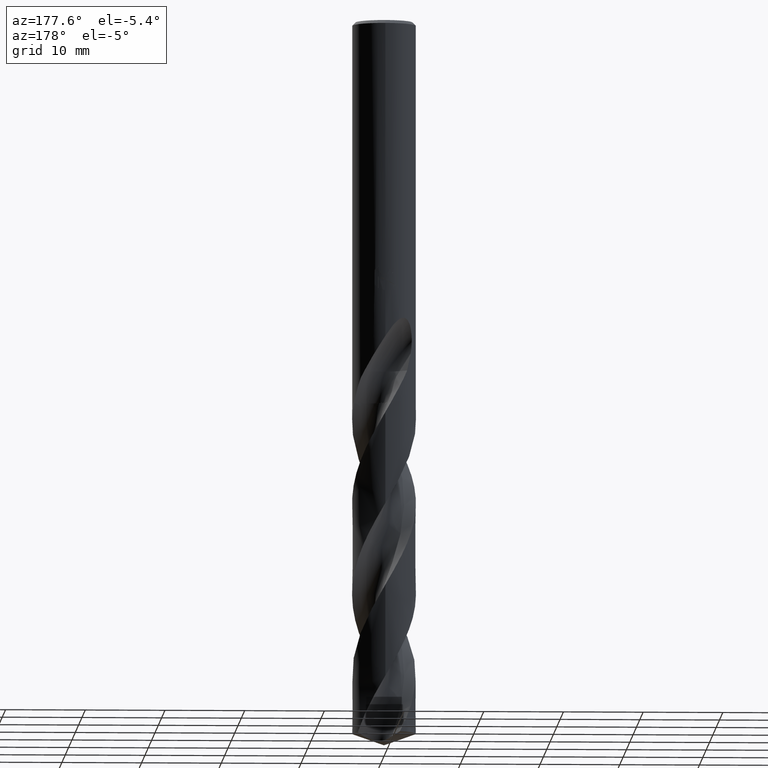
[diagram: clean part render]
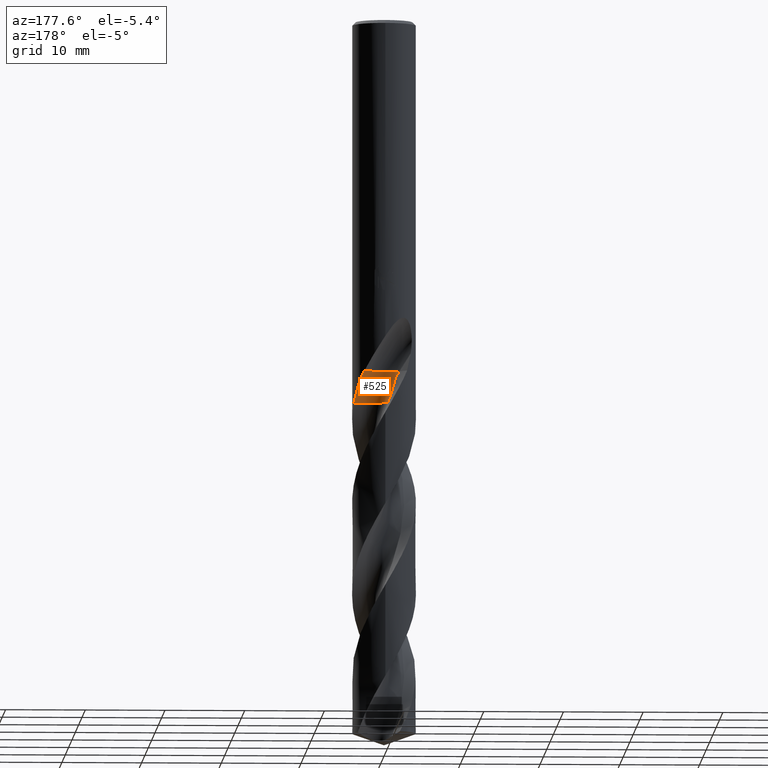
[diagram: same view with one face highlighted and labeled with its STEP entity id]
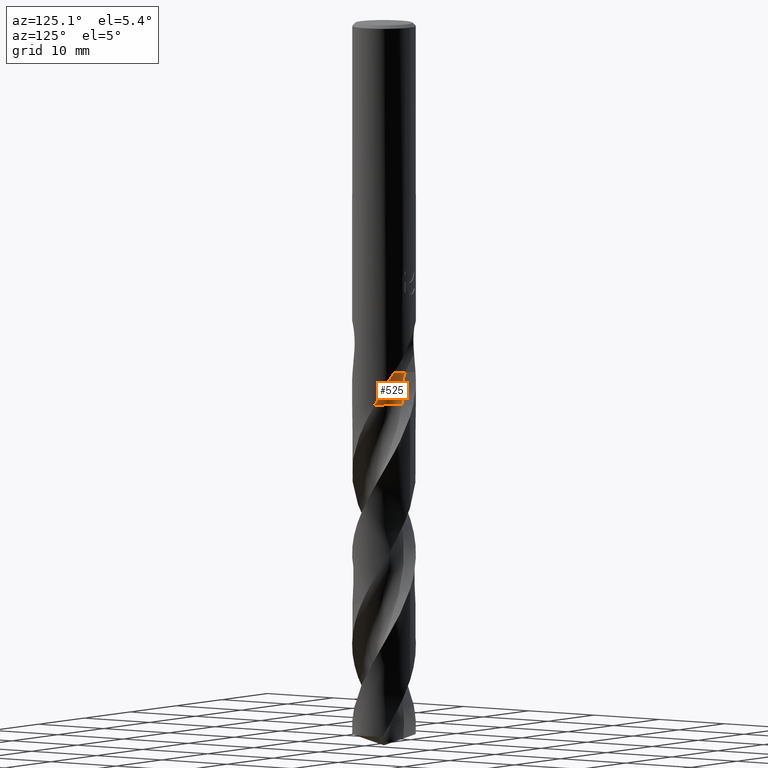
[diagram: same view with one face highlighted and labeled with its STEP entity id]
A machine part, auxiliary view. The second image highlights one B-rep face of the part: STEP entity #525.
A second angle (auxiliary view) of the same face is appended — the face is thin or edge-on in the first view.
In plain terms, the highlighted face is a freeform B-spline surface patch.
Its self-contained STEP definition (entity closure, byte-faithful):
#425=EDGE_CURVE('',#627,#487,#940,.T.);
#427=EDGE_CURVE('',#697,#627,#942,.T.);
#465=EDGE_CURVE('',#723,#639,#983,.T.);
#487=VERTEX_POINT('',#1007);
#525=ADVANCED_FACE('',(#1048),#1049,.F.);
#579=EDGE_CURVE('',#487,#723,#1106,.T.);
#609=EDGE_CURVE('',#639,#697,#1139,.T.);
#627=VERTEX_POINT('',#1158);
#639=VERTEX_POINT('',#1171);
#697=VERTEX_POINT('',#1233);
#723=VERTEX_POINT('',#1262);
#940=B_SPLINE_CURVE_WITH_KNOTS('',3,(#3825,#3826,#3827,#3828,#3829,#3830,#3831,#3832,#3833,#3834,#3835,#3836),.UNSPECIFIED.,.F.,.F.,(4,2,2,2,2,4),(0.0,0.673281679182227,1.64337025448362,2.38350249224297,3.38728835496563,5.3568489773321),.UNSPECIFIED.);
#942=B_SPLINE_CURVE_WITH_KNOTS('',3,(#3839,#3840,#3841,#3842,#3843,#3844,#3845,#3846,#3847,#3848,#3849,#3850,#3851,#3852),.UNSPECIFIED.,.F.,.F.,(4,2,2,2,2,2,4),(0.0,1.04105867677146,2.08135611188664,3.12148193005078,4.16210319264938,4.85750600932007,5.55293171234719),.UNSPECIFIED.);
#983=CIRCLE('',#4351,2.66666667);
#1007=CARTESIAN_POINT('',(2.54885976013372,3.08274454393663,-44.053));
#1048=FACE_OUTER_BOUND('',#4811,.T.);
#1049=B_SPLINE_SURFACE_WITH_KNOTS('',3,3,((#4812,#4813,#4814,#4815,#4816,#4817,#4818,#4819,#4820,#4821,#4822,#4823,#4824,#4825,#4826,#4827,#4828,#4829,#4830,#4831,#4832,#4833,#4834,#4835,#4836,#4837,#4838,#4839,#4840,#4841,#4842,#4843,#4844,#4845,#4846,#4847,#4848,#4849,#4850,#4851,#4852,#4853,#4854,#4855,#4856,#4857,#4858,#4859,#4860,#4861,#4862,#4863,#4864,#4865,#4866,#4867),(#4868,#4869,#4870,#4871,#4872,#4873,#4874,#4875,#4876,#4877,#4878,#4879,#4880,#4881,#4882,#4883,#4884,#4885,#4886,#4887,#4888,#4889,#4890,#4891,#4892,#4893,#4894,#4895,#4896,#4897,#4898,#4899,#4900,#4901,#4902,#4903,#4904,#4905,#4906,#4907,#4908,#4909,#4910,#4911,#4912,#4913,#4914,#4915,#4916,#4917,#4918,#4919,#4920,#4921,#4922,#4923),(#4924,#4925,#4926,#4927,#4928,#4929,#4930,#4931,#4932,#4933,#4934,#4935,#4936,#4937,#4938,#4939,#4940,#4941,#4942,#4943,#4944,#4945,#4946,#4947,#4948,#4949,#4950,#4951,#4952,#4953,#4954,#4955,#4956,#4957,#4958,#4959,#4960,#4961,#4962,#4963,#4964,#4965,#4966,#4967,#4968,#4969,#4970,#4971,#4972,#4973,#4974,#4975,#4976,#4977,#4978,#4979),(#4980,#4981,#4982,#4983,#4984,#4985,#4986,#4987,#4988,#4989,#4990,#4991,#4992,#4993,#4994,#4995,#4996,#4997,#4998,#4999,#5000,#5001,#5002,#5003,#5004,#5005,#5006,#5007,#5008,#5009,#5010,#5011,#5012,#5013,#5014,#5015,#5016,#5017,#5018,#5019,#5020,#5021,#5022,#5023,#5024,#5025,#5026,#5027,#5028,#5029,#5030,#5031,#5032,#5033,#5034,#5035),(#5036,#5037,#5038,#5039,#5040,#5041,#5042,#5043,#5044,#5045,#5046,#5047,#5048,#5049,#5050,#5051,#5052,#5053,#5054,#5055,#5056,#5057,#5058,#5059,#5060,#5061,#5062,#5063,#5064,#5065,#5066,#5067,#5068,#5069,#5070,#5071,#5072,#5073,#5074,#5075,#5076,#5077,#5078,#5079,#5080,#5081,#5082,#5083,#5084,#5085,#5086,#5087,#5088,#5089,#5090,#5091),(#5092,#5093,#5094,#5095,#5096,#5097,#5098,#5099,#5100,#5101,#5102,#5103,#5104,#5105,#5106,#5107,#5108,#5109,#5110,#5111,#5112,#5113,#5114,#5115,#5116,#5117,#5118,#5119,#5120,#5121,#5122,#5123,#5124,#5125,#5126,#5127,#5128,#5129,#5130,#5131,#5132,#5133,#5134,#5135,#5136,#5137,#5138,#5139,#5140,#5141,#5142,#5143,#5144,#5145,#5146,#5147),(#5148,#5149,#5150,#5151,#5152,#5153,#5154,#5155,#5156,#5157,#5158,#5159,#5160,#5161,#5162,#5163,#5164,#5165,#5166,#5167,#5168,#5169,#5170,#5171,#5172,#5173,#5174,#5175,#5176,#5177,#5178,#5179,#5180,#5181,#5182,#5183,#5184,#5185,#5186,#5187,#5188,#5189,#5190,#5191,#5192,#5193,#5194,#5195,#5196,#5197,#5198,#5199,#5200,#5201,#5202,#5203),(#5204,#5205,#5206,#5207,#5208,#5209,#5210,#5211,#5212,#5213,#5214,#5215,#5216,#5217,#5218,#5219,#5220,#5221,#5222,#5223,#5224,#5225,#5226,#5227,#5228,#5229,#5230,#5231,#5232,#5233,#5234,#5235,#5236,#5237,#5238,#5239,#5240,#5241,#5242,#5243,#5244,#5245,#5246,#5247,#5248,#5249,#5250,#5251,#5252,#5253,#5254,#5255,#5256,#5257,#5258,#5259),(#5260,#5261,#5262,#5263,#5264,#5265,#5266,#5267,#5268,#5269,#5270,#5271,#5272,#5273,#5274,#5275,#5276,#5277,#5278,#5279,#5280,#5281,#5282,#5283,#5284,#5285,#5286,#5287,#5288,#5289,#5290,#5291,#5292,#5293,#5294,#5295,#5296,#5297,#5298,#5299,#5300,#5301,#5302,#5303,#5304,#5305,#5306,#5307,#5308,#5309,#5310,#5311,#5312,#5313,#5314,#5315),(#5316,#5317,#5318,#5319,#5320,#5321,#5322,#5323,#5324,#5325,#5326,#5327,#5328,#5329,#5330,#5331,#5332,#5333,#5334,#5335,#5336,#5337,#5338,#5339,#5340,#5341,#5342,#5343,#5344,#5345,#5346,#5347,#5348,#5349,#5350,#5351,#5352,#5353,#5354,#5355,#5356,#5357,#5358,#5359,#5360,#5361,#5362,#5363,#5364,#5365,#5366,#5367,#5368,#5369,#5370,#5371),(#5372,#5373,#5374,#5375,#5376,#5377,#5378,#5379,#5380,#5381,#5382,#5383,#5384,#5385,#5386,#5387,#5388,#5389,#5390,#5391,#5392,#5393,#5394,#5395,#5396,#5397,#5398,#5399,#5400,#5401,#5402,#5403,#5404,#5405,#5406,#5407,#5408,#5409,#5410,#5411,#5412,#5413,#5414,#5415,#5416,#5417,#5418,#5419,#5420,#5421,#5422,#5423,#5424,#5425,#5426,#5427)),.UNSPECIFIED.,.F.,.F.,.F.,(4,1,1,1,1,1,1,1,4),(4,1,2,1,2,2,2,2,2,1,2,1,2,1,2,1,2,1,2,1,2,1,2,1,2,1,2,1,2,1,2,1,2,2,4),(4.27095186761561E-018,0.39270124676232,0.785402493524641,1.17810374028696,1.57080498704928,1.9635062338116,2.35620748057392,2.74890872733624,3.14160997409856),(0.0,0.943118589325225,1.88623717865045,2.82935576797567,3.7724743573009,5.65871153595135,7.5449487146018,9.43118589325225,11.3174230719027,13.2036602505531,15.0898974292036,16.976134607854,18.8623717865045,20.7486089651549,22.6348461438054,24.5210833224558,26.4073205011063,28.2935576797567,30.1797948584072,32.0660320370576,33.9522692157081,35.8385063943585,37.724743573009,39.6109807516594,41.4972179303099,43.3834551089603,45.2696922876108,47.1559294662612,49.0421666449117,50.9284038235621,52.8146410022126,54.700878180863,56.5871153595135,58.4733525381639,60.3595897168144),.UNSPECIFIED.);
#1106=CIRCLE('',#5772,2.66666667);
#1139=B_SPLINE_CURVE_WITH_KNOTS('',3,(#6514,#6515,#6516,#6517,#6518,#6519,#6520,#6521,#6522,#6523,#6524,#6525,#6526,#6527,#6528,#6529,#6530,#6531,#6532,#6533,#6534,#6535,#6536,#6537,#6538,#6539,#6540,#6541,#6542,#6543,#6544,#6545,#6546,#6547,#6548,#6549,#6550,#6551,#6552,#6553,#6554,#6555,#6556,#6557,#6558,#6559,#6560,#6561,#6562,#6563,#6564,#6565,#6566,#6567,#6568,#6569),.UNSPECIFIED.,.F.,.F.,(4,1,2,1,2,2,2,2,2,1,2,1,2,1,2,1,2,1,2,1,2,1,2,1,2,1,2,1,2,1,2,1,2,2,4),(0.0,0.943118589325225,1.88623717865045,2.82935576797567,3.7724743573009,5.65871153595135,7.5449487146018,9.43118589325225,11.3174230719027,13.2036602505531,15.0898974292036,16.976134607854,18.8623717865045,20.7486089651549,22.6348461438054,24.5210833224558,26.4073205011063,28.2935576797567,30.1797948584072,32.0660320370576,33.9522692157081,35.8385063943585,37.724743573009,39.6109807516594,41.4972179303099,43.3834551089603,45.2696922876108,47.1559294662612,49.0421666449117,50.9284038235621,52.8146410022126,54.700878180863,56.5871153595135,58.4733525381639,60.3595897168144),.UNSPECIFIED.);
#1158=CARTESIAN_POINT('',(3.8397622781994,1.12081472461642,-48.0));
#1171=CARTESIAN_POINT('',(-1.88561808545044,1.98104858454956,-44.053));
#1233=CARTESIAN_POINT('',(-0.391247382162112,2.4799416168891,-48.0000000000004));
#1262=CARTESIAN_POINT('',(-0.458791990393921,1.23974987486383,-44.053));
#3825=CARTESIAN_POINT('',(3.83976227819939,1.12081472461642,-48.0));
#3826=CARTESIAN_POINT('',(3.80832560203784,1.22851259887338,-47.805627977272));
#3827=CARTESIAN_POINT('',(3.77216141738727,1.3355699424685,-47.6116524157746));
#3828=CARTESIAN_POINT('',(3.67205241181794,1.59465136283516,-47.1394654932676));
#3829=CARTESIAN_POINT('',(3.60630844881775,1.73790509062416,-46.8798371483716));
#3830=CARTESIAN_POINT('',(3.47330951293927,1.98774355459478,-46.3937512436308));
#3831=CARTESIAN_POINT('',(3.41232867950816,2.09032213826649,-46.1833227712735));
#3832=CARTESIAN_POINT('',(3.26298928480476,2.31896745944481,-45.6789622752263));
#3833=CARTESIAN_POINT('',(3.19371862869683,2.4113766255632,-45.4382280753419));
#3834=CARTESIAN_POINT('',(2.96971512491096,2.69015032842839,-44.8007407991685));
#3835=CARTESIAN_POINT('',(2.78667457982286,2.88611565833489,-44.4202380786655));
#3836=CARTESIAN_POINT('',(2.54885976013373,3.08274454393663,-44.053));
#3839=CARTESIAN_POINT('',(-0.391247382162428,2.47994161688906,-48.0));
#3840=CARTESIAN_POINT('',(-0.297580253405777,2.14580235959329,-48.0));
#3841=CARTESIAN_POINT('',(-0.139550438106173,1.8331601576751,-48.0));
#3842=CARTESIAN_POINT('',(0.287382324708038,1.2863000585679,-48.0));
#3843=CARTESIAN_POINT('',(0.552107450142705,1.05727398114392,-48.0));
#3844=CARTESIAN_POINT('',(1.15443793024002,0.713630284446721,-48.0));
#3845=CARTESIAN_POINT('',(1.48624524002398,0.6022945604174,-48.0));
#3846=CARTESIAN_POINT('',(2.17405040373108,0.5130041206521,-48.0));
#3847=CARTESIAN_POINT('',(2.52346169552058,0.535968436819653,-48.0));
#3848=CARTESIAN_POINT('',(3.08266122347612,0.68484108259005,-48.0));
#3849=CARTESIAN_POINT('',(3.29793082225787,0.773436439027168,-48.0));
#3850=CARTESIAN_POINT('',(3.7001265866047,1.00403498087829,-48.0));
#3851=CARTESIAN_POINT('',(3.88534561716917,1.14506156256095,-48.0));
#3852=CARTESIAN_POINT('',(4.05,1.30823400549445,-48.0));
#4351=AXIS2_PLACEMENT_3D('',#9005,#9006,#9007);
#4811=EDGE_LOOP('',(#9060,#9061,#9062,#9063,#9064));
#4812=CARTESIAN_POINT('',(1.88561808545044,5.75228475545044,-44.053));
#4813=CARTESIAN_POINT('',(2.08347829626683,5.73801622095054,-44.2971564876559));
#4814=CARTESIAN_POINT('',(2.48357630315693,5.66801053084746,-44.7886155322624));
#4815=CARTESIAN_POINT('',(2.87832376785535,5.48695818626104,-45.2812509691191));
#4816=CARTESIAN_POINT('',(3.25509506895458,5.23856327614468,-45.7679243680009));
#4817=CARTESIAN_POINT('',(3.61665090027328,4.97835442021255,-46.2534796726459));
#4818=CARTESIAN_POINT('',(3.95339972773346,4.70190689295454,-46.7416229556044));
#4819=CARTESIAN_POINT('',(4.44156745450731,4.27853447781238,-47.4784941910345));
#4820=CARTESIAN_POINT('',(4.73627101999496,3.95822973755883,-47.96926509186));
#4821=CARTESIAN_POINT('',(5.24163281531017,3.24736411491388,-48.9452357999242));
#4822=CARTESIAN_POINT('',(5.45837337715525,2.86761713468972,-49.4336829182974));
#4823=CARTESIAN_POINT('',(5.80793205760429,2.07164998715827,-50.4128735604921));
#4824=CARTESIAN_POINT('',(5.94106721108121,1.65596301843785,-50.902179767232));
#4825=CARTESIAN_POINT('',(6.11420091059893,0.803644836234833,-51.8799425126306));
#4826=CARTESIAN_POINT('',(6.15648935171786,0.368681367858238,-52.3690458817265));
#4827=CARTESIAN_POINT('',(6.14401970502768,-0.50193266271098,-53.3473837691063));
#4828=CARTESIAN_POINT('',(6.04360528199187,-1.36899136706167,-54.3252989085469));
#4829=CARTESIAN_POINT('',(5.76455547610883,-2.19680873843578,-55.304020817578));
#4830=CARTESIAN_POINT('',(5.3941426231465,-2.98520035111992,-56.2821196103673));
#4831=CARTESIAN_POINT('',(4.94514211116869,-3.73402962894458,-57.2597600512782));
#4832=CARTESIAN_POINT('',(4.35005656194376,-4.37374848800971,-58.2384109514841));
#4833=CARTESIAN_POINT('',(3.68822348899044,-4.94006716869988,-59.2166407895469));
#4834=CARTESIAN_POINT('',(2.9710005647799,-5.43794852404356,-60.1943925221067));
#4835=CARTESIAN_POINT('',(2.16545375097933,-5.77615916293302,-61.1730588970311));
#4836=CARTESIAN_POINT('',(1.32923899690343,-6.01999909488507,-62.1512423185889));
#4837=CARTESIAN_POINT('',(0.470691215204489,-6.1787016191131,-63.1289595608402));
#4838=CARTESIAN_POINT('',(-0.402681476582713,-6.15556287494775,-64.1076239481183));
#4839=CARTESIAN_POINT('',(-1.26517662105912,-6.03378115870362,-65.0858216301821));
#4840=CARTESIAN_POINT('',(-2.11299242810955,-5.82520612493317,-66.063548222799));
#4841=CARTESIAN_POINT('',(-2.89949975832343,-5.44479624558776,-67.0422126738579));
#4842=CARTESIAN_POINT('',(-3.63551412919657,-4.97896269259696,-68.0204072296049));
#4843=CARTESIAN_POINT('',(-4.32244505763026,-4.4400615606234,-68.9981321487537));
#4844=CARTESIAN_POINT('',(-4.88280401434949,-3.76976157455679,-69.9767964090954));
#4845=CARTESIAN_POINT('',(-5.36199529229575,-3.04237300272744,-70.9549906904034));
#4846=CARTESIAN_POINT('',(-5.76638881094223,-2.26858098301804,-71.9327153486768));
#4847=CARTESIAN_POINT('',(-6.00136081754075,-1.42709971134656,-72.911380342025));
#4848=CARTESIAN_POINT('',(-6.13886656513858,-0.566978772647396,-73.8895762974419));
#4849=CARTESIAN_POINT('',(-6.18910518031083,0.304665212202986,-74.8673014210747));
#4850=CARTESIAN_POINT('',(-6.05707341647413,1.16830541962717,-75.8459614016409));
#4851=CARTESIAN_POINT('',(-5.82853757749191,2.00883877851352,-76.8241484551032));
#4852=CARTESIAN_POINT('',(-5.51572450361433,2.82397509227054,-77.8018715258961));
#4853=CARTESIAN_POINT('',(-5.04006496641513,3.5568189608194,-78.7805500407334));
#4854=CARTESIAN_POINT('',(-4.48594272198591,4.22888022554178,-79.7587676525697));
#4855=CARTESIAN_POINT('',(-3.86546208441631,4.84310362932056,-80.7364955174297));
#4856=CARTESIAN_POINT('',(-3.13046394947556,5.31538864865114,-81.7151129603291));
#4857=CARTESIAN_POINT('',(-2.34898167821091,5.70008587160547,-82.6932346413857));
#4858=CARTESIAN_POINT('',(-1.53071868611604,6.0047756310503,-83.6709512564821));
#4859=CARTESIAN_POINT('',(-0.666317102176655,6.13257113034508,-84.6497485461618));
#4860=CARTESIAN_POINT('',(0.204395202806848,6.16101906002486,-85.6281425940594));
#4861=CARTESIAN_POINT('',(1.07533809830945,6.10167168488739,-86.6059079422162));
#4862=CARTESIAN_POINT('',(1.91554304645226,5.86397392524449,-87.584352686936));
#4863=CARTESIAN_POINT('',(2.72113491806778,5.53442570637007,-88.5622403259292));
#4864=CARTESIAN_POINT('',(3.10637226781212,5.3279408792601,-89.0512409386577));
#4865=CARTESIAN_POINT('',(3.82329562785807,4.83436502819817,-90.0292218071077));
#4866=CARTESIAN_POINT('',(4.15601495955671,4.55409905019397,-90.5175576446439));
#4867=CARTESIAN_POINT('',(4.45825116858403,4.24525135560922,-91.0064682916048));
#4868=CARTESIAN_POINT('',(2.13243607235617,5.50544636091594,-44.053));
#4869=CARTESIAN_POINT('',(2.3298994708686,5.49078104792074,-44.2971451603825));
#4870=CARTESIAN_POINT('',(2.72398436309882,5.41458744984642,-44.7889440151415));
#4871=CARTESIAN_POINT('',(3.10081488153193,5.21752258760379,-45.2820280054404));
#4872=CARTESIAN_POINT('',(3.4523155650183,4.95011538738026,-45.7683414078272));
#4873=CARTESIAN_POINT('',(3.78938011804517,4.6741412221411,-46.253401364705));
#4874=CARTESIAN_POINT('',(4.10410701804709,4.38684531720718,-46.7414236405063));
#4875=CARTESIAN_POINT('',(4.56117987006919,3.94981924153904,-47.4787524223094));
#4876=CARTESIAN_POINT('',(4.83304388611244,3.62188353563378,-47.9697513863138));
#4877=CARTESIAN_POINT('',(5.28868004278727,2.9005495806324,-48.9454097242412));
#4878=CARTESIAN_POINT('',(5.48077863301153,2.51840220179068,-49.4337676991352));
#4879=CARTESIAN_POINT('',(5.78115856378917,1.72274310419697,-50.4130976842006));
#4880=CARTESIAN_POINT('',(5.88986742786428,1.30978415746213,-50.902432606474));
#4881=CARTESIAN_POINT('',(6.01465649047952,0.468157185301798,-51.8801351030036));
#4882=CARTESIAN_POINT('',(6.033532385516,0.0410352251192048,-52.369239397922));
#4883=CARTESIAN_POINT('',(5.97572946349401,-0.808769100498875,-53.3475973146516));
#4884=CARTESIAN_POINT('',(5.83315475328328,-1.65066182408856,-54.3254736371946));
#4885=CARTESIAN_POINT('',(5.51791672461411,-2.44509482180372,-55.3042687945437));
#4886=CARTESIAN_POINT('',(5.11455950940161,-3.19569914358866,-56.2823542831663));
#4887=CARTESIAN_POINT('',(4.63740346669448,-3.90411548858673,-57.2599177072296));
#4888=CARTESIAN_POINT('',(4.02308892186748,-4.49851846580713,-58.2386320606394));
#4889=CARTESIAN_POINT('',(3.34679480456725,-5.01688935387995,-59.2168668110099));
#4890=CARTESIAN_POINT('',(2.62053859174626,-5.46637821431278,-60.1945570229163));
#4891=CARTESIAN_POINT('',(1.81610672541941,-5.75536886263318,-61.1732889613512));
#4892=CARTESIAN_POINT('',(0.986438399846955,-5.94954957443835,-62.1514708624328));
#4893=CARTESIAN_POINT('',(0.139567732597573,-6.06042655437068,-63.1291217702386));
#4894=CARTESIAN_POINT('',(-0.712539690563504,-5.99288691632183,-64.107851452982));
#4895=CARTESIAN_POINT('',(-1.54863759939642,-5.82853677911455,-65.0860496028846));
#4896=CARTESIAN_POINT('',(-2.36613373771299,-5.58117481161453,-66.0637111389466));
#4897=CARTESIAN_POINT('',(-3.11499151598573,-5.16904481405449,-67.0424409586324));
#4898=CARTESIAN_POINT('',(-3.80943396259756,-4.67527331520269,-68.0206354558996));
#4899=CARTESIAN_POINT('',(-4.45277363309271,-4.11349424044055,-68.9982951334444));
#4900=CARTESIAN_POINT('',(-4.96576722549039,-3.42977237502549,-69.9770247444696));
#4901=CARTESIAN_POINT('',(-5.39557364152197,-2.6940228215967,-70.955218908818));
#4902=CARTESIAN_POINT('',(-5.75082363941171,-1.91731261551328,-71.9328783782979));
#4903=CARTESIAN_POINT('',(-5.9371028034998,-1.08308451722629,-72.9116087154391));
#4904=CARTESIAN_POINT('',(-6.02615720308267,-0.235660282042138,-73.8898048462956));
#4905=CARTESIAN_POINT('',(-6.03040312610781,0.618425372051994,-74.8674646424876));
#4906=CARTESIAN_POINT('',(-5.85697380938868,1.45542160480376,-75.8461893222424));
#4907=CARTESIAN_POINT('',(-5.58950027114127,2.26444886957428,-76.8243755569868));
#4908=CARTESIAN_POINT('',(-5.24199115847301,3.04465999828041,-77.8020334665409));
#4909=CARTESIAN_POINT('',(-4.73956072703115,3.73618686156062,-78.7807790530557));
#4910=CARTESIAN_POINT('',(-4.16290952844086,4.36350930597093,-79.7589993549653));
#4911=CARTESIAN_POINT('',(-3.52517408012618,4.93162310316389,-80.7366609894215));
#4912=CARTESIAN_POINT('',(-2.78277642138677,5.35524517720665,-81.7153375867604));
#4913=CARTESIAN_POINT('',(-1.99916524953917,5.68991573647527,-82.6934516654361));
#4914=CARTESIAN_POINT('',(-1.18413868642122,5.94548266814384,-83.6711065917535));
#4915=CARTESIAN_POINT('',(-0.333026595318698,6.02582405930629,-84.6499860288056));
#4916=CARTESIAN_POINT('',(0.518999243715816,6.00771679173756,-85.6283978545787));
#4917=CARTESIAN_POINT('',(1.36675441024159,5.9049465613396,-86.6060850075891));
#4918=CARTESIAN_POINT('',(2.17548125384667,5.62966580199933,-87.584562368642));
#4919=CARTESIAN_POINT('',(2.94518890788208,5.26559901632118,-88.5624298905656));
#4920=CARTESIAN_POINT('',(3.31084176655673,5.0439253422802,-89.0514407199777));
#4921=CARTESIAN_POINT('',(3.98523097483361,4.52412427406355,-90.0294649804789));
#4922=CARTESIAN_POINT('',(4.29608208403759,4.23349181393367,-90.5177443934788));
#4923=CARTESIAN_POINT('',(4.57604996168047,3.91666085912254,-91.0066723504763));
#4924=CARTESIAN_POINT('',(2.52780940903102,4.91372298130983,-44.0529999999998));
#4925=CARTESIAN_POINT('',(2.72432156853769,4.89842207582907,-44.297126529459));
#4926=CARTESIAN_POINT('',(3.10392204967595,4.8122465054407,-44.7894842669751));
#4927=CARTESIAN_POINT('',(3.43855894427061,4.59028773801236,-45.2833059742612));
#4928=CARTESIAN_POINT('',(3.7319682796878,4.2949135345331,-45.7690273094497));
#4929=CARTESIAN_POINT('',(4.01379121941145,3.99715488984904,-46.253272573128));
#4930=CARTESIAN_POINT('',(4.2801695554899,3.69692403865504,-46.7410958263955));
#4931=CARTESIAN_POINT('',(4.66963620385918,3.24496172126949,-47.4791771395497));
#4932=CARTESIAN_POINT('',(4.8927961919539,2.91084951061361,-47.9705511947322));
#4933=CARTESIAN_POINT('',(5.24483912293665,2.18835762849992,-48.9456957629319));
#4934=CARTESIAN_POINT('',(5.38670958833735,1.81120966155784,-49.4339071507061));
#4935=CARTESIAN_POINT('',(5.58887524377648,1.03572310739259,-50.4134662810573));
#4936=CARTESIAN_POINT('',(5.64982661662209,0.637932482239153,-50.9028484429637));
#4937=CARTESIAN_POINT('',(5.6821983110888,-0.16309163534911,-51.8804518546765));
#4938=CARTESIAN_POINT('',(5.65737723800919,-0.565223562532268,-52.3695576920482));
#4939=CARTESIAN_POINT('',(5.51720211945778,-1.35538984836127,-53.3479485059104));
#4940=CARTESIAN_POINT('',(5.30033219350064,-2.13019557445814,-54.3257610058353));
#4941=CARTESIAN_POINT('',(4.92600869131137,-2.84348316957057,-55.3046766664288));
#4942=CARTESIAN_POINT('',(4.47180325870133,-3.50542802410905,-56.2827402146051));
#4943=CARTESIAN_POINT('',(3.95441881522486,-4.12183907847177,-57.2601770257237));
#4944=CARTESIAN_POINT('',(3.31967479326829,-4.61798271738214,-58.2389956931096));
#4945=CARTESIAN_POINT('',(2.63353182555062,-5.03472756140525,-59.217238564302));
#4946=CARTESIAN_POINT('',(1.90845676962033,-5.38385961154768,-60.194827548799));
#4947=CARTESIAN_POINT('',(1.12582731048359,-5.57487436438068,-61.1736673720568));
#4948=CARTESIAN_POINT('',(0.32899676926968,-5.67236083301938,-62.1518467143584));
#4949=CARTESIAN_POINT('',(-0.475506090091183,-5.69225044039248,-63.1293885529942));
#4950=CARTESIAN_POINT('',(-1.26743530750073,-5.54438409923401,-64.1082256530444));
#4951=CARTESIAN_POINT('',(-2.0338219677888,-5.30541230333051,-65.0864245166291));
#4952=CARTESIAN_POINT('',(-2.77526734529458,-4.99254982554224,-66.0639791486466));
#4953=CARTESIAN_POINT('',(-3.43622794133723,-4.53196480201425,-67.0428163111411));
#4954=CARTESIAN_POINT('',(-4.03643415440538,-3.99886081444177,-68.021010916969));
#4955=CARTESIAN_POINT('',(-4.5835119088183,-3.40867018854192,-68.9985632200594));
#4956=CARTESIAN_POINT('',(-4.99645734653568,-2.71694565712237,-69.9774001215335));
#4957=CARTESIAN_POINT('',(-5.32418995570539,-1.98411625343706,-70.9555944155741));
#4958=CARTESIAN_POINT('',(-5.58001315264688,-1.22111350977376,-71.9331464123022));
#4959=CARTESIAN_POINT('',(-5.67181148593173,-0.420752061348153,-72.9119843494595));
#4960=CARTESIAN_POINT('',(-5.66903255992069,0.382016770012066,-73.8901807021492));
#4961=CARTESIAN_POINT('',(-5.58829482521803,1.18270351082061,-74.8677330743617));
#4962=CARTESIAN_POINT('',(-5.34268315625389,1.94996071204297,-75.8465642410423));
#4963=CARTESIAN_POINT('',(-5.00987943565338,2.68050496785326,-76.8247490035234));
#4964=CARTESIAN_POINT('',(-4.60688135522611,3.37708303974024,-77.8022997079202));
#4965=CARTESIAN_POINT('',(-4.06735068694314,3.97534750213503,-78.7811559649788));
#4966=CARTESIAN_POINT('',(-3.46344202906828,4.50425218853546,-79.7593801703153));
#4967=CARTESIAN_POINT('',(-2.80954040623019,4.97330456975827,-80.736933268926));
#4968=CARTESIAN_POINT('',(-2.07169826079389,5.29667873929675,-81.7157070224798));
#4969=CARTESIAN_POINT('',(-1.3037239883543,5.5304704273437,-82.6938086024462));
#4970=CARTESIAN_POINT('',(-0.514703306306317,5.68909941573055,-83.6713620146742));
#4971=CARTESIAN_POINT('',(0.290964651428653,5.67983732486805,-84.6503767158804));
#4972=CARTESIAN_POINT('',(1.08711211512299,5.57607016267473,-85.6288175712533));
#4973=CARTESIAN_POINT('',(1.87123386303998,5.39569346563158,-86.6063763107042));
#4974=CARTESIAN_POINT('',(2.60207237375206,5.05778021679069,-87.584907156778));
#4975=CARTESIAN_POINT('',(3.28629990650511,4.63896069298623,-88.5627417339684));
#4976=CARTESIAN_POINT('',(3.60675196850412,4.39470375813903,-89.0517693550789));
#4977=CARTESIAN_POINT('',(4.18566200369408,3.8393775732866,-90.0298648630923));
#4978=CARTESIAN_POINT('',(4.44866347882017,3.53671273696155,-90.5180514910811));
#4979=CARTESIAN_POINT('',(4.68092941867461,3.21277392204209,-91.0070079615718));
#4980=CARTESIAN_POINT('',(2.73608997046833,3.86666886677179,-44.0529999999996));
#4981=CARTESIAN_POINT('',(2.9309189106877,3.85103313442146,-44.297114901153));
#4982=CARTESIAN_POINT('',(3.2847147667282,3.75933814614107,-44.7898215216971));
#4983=CARTESIAN_POINT('',(3.54658491340322,3.52709809209786,-45.2841037602427));
#4984=CARTESIAN_POINT('',(3.74342806908816,3.2263118926581,-45.7694554872359));
#4985=CARTESIAN_POINT('',(3.93618400304013,2.93007356283689,-46.253192174454));
#4986=CARTESIAN_POINT('',(4.1281292945772,2.63967012480868,-46.740891186705));
#4987=CARTESIAN_POINT('',(4.41532400329942,2.20581681820957,-47.4794422706751));
#4988=CARTESIAN_POINT('',(4.56743809907669,1.89110240236489,-47.9710504771838));
#4989=CARTESIAN_POINT('',(4.77524279465077,1.22647423310671,-48.9458743302924));
#4990=CARTESIAN_POINT('',(4.85037041306046,0.885088738943272,-49.4339941912634));
#4991=CARTESIAN_POINT('',(4.92799774695181,0.193940021404465,-50.4136963942942));
#4992=CARTESIAN_POINT('',(4.93146784542772,-0.155413055932445,-50.903108032707));
#4993=CARTESIAN_POINT('',(4.85906341061759,-0.847111825506429,-51.8806495896773));
#4994=CARTESIAN_POINT('',(4.78802686067405,-1.1895248719105,-52.369756378805));
#4995=CARTESIAN_POINT('',(4.56792475360706,-1.84975086570578,-53.3481677514169));
#4996=CARTESIAN_POINT('',(4.28659811123204,-2.48892908829912,-54.3259403987658));
#4997=CARTESIAN_POINT('',(3.87696776589313,-3.05583646681671,-55.3049312719625));
#4998=CARTESIAN_POINT('',(3.40318530754351,-3.56571566485968,-56.2829811479275));
#4999=CARTESIAN_POINT('',(2.88286294178646,-4.03152024028103,-57.260338892856));
#5000=CARTESIAN_POINT('',(2.27621102135024,-4.37975544863573,-58.2392227113246));
#5001=CARTESIAN_POINT('',(1.63475686322917,-4.64999962646646,-59.2174706172626));
#5002=CARTESIAN_POINT('',(0.968929005524493,-4.86072186552191,-60.1949964426722));
#5003=CARTESIAN_POINT('',(0.272759465003342,-4.92846431941896,-61.1739035843876));
#5004=CARTESIAN_POINT('',(-0.423052520347933,-4.91078962630068,-62.1520813572543));
#5005=CARTESIAN_POINT('',(-1.11660478561779,-4.82889818737447,-63.1295550889771));
#5006=CARTESIAN_POINT('',(-1.77901938185573,-4.60424984505534,-64.1084592479481));
#5007=CARTESIAN_POINT('',(-2.40595410674989,-4.30187531992449,-65.086658562751));
#5008=CARTESIAN_POINT('',(-3.00439742569335,-3.94189071310959,-66.0641464468517));
#5009=CARTESIAN_POINT('',(-3.51572272471842,-3.4646078119599,-67.0430506439727));
#5010=CARTESIAN_POINT('',(-3.96274487439893,-2.93108817830791,-68.0212452862555));
#5011=CARTESIAN_POINT('',(-4.36010028226222,-2.35678051576609,-68.9987305518241));
#5012=CARTESIAN_POINT('',(-4.6297917507969,-1.71139767604874,-69.9776345171317));
#5013=CARTESIAN_POINT('',(-4.81773317957076,-1.0412111177582,-70.955828765961));
#5014=CARTESIAN_POINT('',(-4.94362628928362,-0.354282322341596,-71.9333137738899));
#5015=CARTESIAN_POINT('',(-4.92392171511928,0.34490532683424,-72.9122188275456));
#5016=CARTESIAN_POINT('',(-4.81950251114196,1.03306758893267,-73.8904153483699));
#5017=CARTESIAN_POINT('',(-4.65163690032423,1.71096182111018,-74.8679006826898));
#5018=CARTESIAN_POINT('',(-4.34601915068748,2.34012900509525,-75.846798197997));
#5019=CARTESIAN_POINT('',(-3.9677255519225,2.92439806000412,-76.8249822203468));
#5020=CARTESIAN_POINT('',(-3.53583330220604,3.47321267436296,-77.8024659403847));
#5021=CARTESIAN_POINT('',(-2.99842162561565,3.92092422620369,-78.7813911083941));
#5022=CARTESIAN_POINT('',(-2.4132329542696,4.29778127049296,-79.7596180449411));
#5023=CARTESIAN_POINT('',(-1.79379261177229,4.62026086886838,-80.7371031752196));
#5024=CARTESIAN_POINT('',(-1.11981162440995,4.80731325693728,-81.7159376320948));
#5025=CARTESIAN_POINT('',(-0.431418833303815,4.91026998258313,-82.6940314375279));
#5026=CARTESIAN_POINT('',(0.265911870133149,4.94947820218383,-83.6715214881004));
#5027=CARTESIAN_POINT('',(0.957160271055485,4.84211896581082,-84.6506205451127));
#5028=CARTESIAN_POINT('',(1.62669078832445,4.65171004930462,-85.6290796438164));
#5029=CARTESIAN_POINT('',(2.27807055956718,4.40030492808534,-86.6065580955454));
#5030=CARTESIAN_POINT('',(2.86500673153041,4.02029922077692,-87.5851224607036));
#5031=CARTESIAN_POINT('',(3.39933356350183,3.57466617101041,-88.5629363381943));
#5032=CARTESIAN_POINT('',(3.644176379638,3.32505797358088,-89.0519744844398));
#5033=CARTESIAN_POINT('',(4.07036537247522,2.77530637692108,-90.0301145174536));
#5034=CARTESIAN_POINT('',(4.26014320884117,2.48343373370634,-90.5182431870088));
#5035=CARTESIAN_POINT('',(4.42221717344647,2.17702731146663,-91.0072174698049));
#5036=CARTESIAN_POINT('',(2.5278235888308,2.81961193168118,-44.0530000000001));
#5037=CARTESIAN_POINT('',(2.72096930553305,2.80431100359063,-44.2971213579687));
#5038=CARTESIAN_POINT('',(3.0488125500979,2.71739188933497,-44.7896342370609));
#5039=CARTESIAN_POINT('',(3.23952218232368,2.50349915090768,-45.2836607321211));
#5040=CARTESIAN_POINT('',(3.34507760970308,2.23466786800386,-45.7692177107119));
#5041=CARTESIAN_POINT('',(3.45612766746215,1.97391913194288,-46.253236821164));
#5042=CARTESIAN_POINT('',(3.58306690311652,1.72107930809399,-46.7410048284933));
#5043=CARTESIAN_POINT('',(3.78270469731501,1.34309460203619,-47.4792950357951));
#5044=CARTESIAN_POINT('',(3.87660473730782,1.07348908115526,-47.9707732103279));
#5045=CARTESIAN_POINT('',(3.97329398373894,0.517518300271621,-48.945775172239));
#5046=CARTESIAN_POINT('',(4.0004450976848,0.23471452644302,-49.4339458540112));
#5047=CARTESIAN_POINT('',(3.99528902954198,-0.33085737836947,-50.4135686090695));
#5048=CARTESIAN_POINT('',(3.96418975242013,-0.613462855120989,-50.9029638750624));
#5049=CARTESIAN_POINT('',(3.83682206136117,-1.16406187697667,-51.8805397848338));
#5050=CARTESIAN_POINT('',(3.74594155781756,-1.4336159406418,-52.3696460421032));
#5051=CARTESIAN_POINT('',(3.50172284887896,-1.94320600215925,-53.348046001141));
#5052=CARTESIAN_POINT('',(3.21274867890391,-2.43241416286582,-54.3258407828391));
#5053=CARTESIAN_POINT('',(2.82651662694606,-2.85057265083516,-55.3047898725107));
#5054=CARTESIAN_POINT('',(2.39284066327853,-3.2124697599509,-56.2828473637536));
#5055=CARTESIAN_POINT('',(1.92743895722624,-3.53800782074843,-57.2602489914634));
#5056=CARTESIAN_POINT('',(1.40334306819479,-3.76034407532698,-58.2390966577405));
#5057=CARTESIAN_POINT('',(0.859239606546969,-3.91234114926503,-59.2173417385278));
#5058=CARTESIAN_POINT('',(0.301116439766035,-4.01786249642344,-60.1949026643655));
#5059=CARTESIAN_POINT('',(-0.268000186940186,-4.00480327005439,-61.1737724007575));
#5060=CARTESIAN_POINT('',(-0.826412790597423,-3.91939194332444,-62.1519510646237));
#5061=CARTESIAN_POINT('',(-1.37850996363596,-3.78592630259916,-63.1294625916467));
#5062=CARTESIAN_POINT('',(-1.89188547727621,-3.5399040573157,-64.1083295503062));
#5063=CARTESIAN_POINT('',(-2.36572024415306,-3.23231929748785,-65.0865285690473));
#5064=CARTESIAN_POINT('',(-2.8140139598107,-2.88352437022418,-66.0640535359657));
#5065=CARTESIAN_POINT('',(-3.18070442921063,-2.44807785722616,-67.0429205495678));
#5066=CARTESIAN_POINT('',(-3.48604402100336,-1.9727955081666,-68.0211151000654));
#5067=CARTESIAN_POINT('',(-3.75115223876392,-1.47045837341734,-68.9986376353352));
#5068=CARTESIAN_POINT('',(-3.90622875291591,-0.922710774489871,-69.9775043748323));
#5069=CARTESIAN_POINT('',(-3.98899257644122,-0.363894640505559,-70.9556986033121));
#5070=CARTESIAN_POINT('',(-4.02395837613569,0.20302863508585,-71.933220845685));
#5071=CARTESIAN_POINT('',(-3.93995640953129,0.766073516721269,-72.912088616707));
#5072=CARTESIAN_POINT('',(-3.78549213933293,1.30945695346275,-73.8902850441605));
#5073=CARTESIAN_POINT('',(-3.58412183208728,1.84056316002753,-74.8678076011812));
#5074=CARTESIAN_POINT('',(-3.27591076630404,2.31918853729493,-75.8466682863858));
#5075=CARTESIAN_POINT('',(-2.91156738818906,2.75090873786869,-76.8248527000888));
#5076=CARTESIAN_POINT('',(-2.50952737506043,3.15215037037974,-77.8023736619844));
#5077=CARTESIAN_POINT('',(-2.03168774847881,3.46158028273101,-78.7812604696323));
#5078=CARTESIAN_POINT('',(-1.52198045614807,3.70512758824737,-79.7594860063756));
#5079=CARTESIAN_POINT('',(-0.990469481691925,3.90537948397598,-80.737008806289));
#5080=CARTESIAN_POINT('',(-0.427656748981208,3.99092584303256,-81.7158095435067));
#5081=CARTESIAN_POINT('',(0.13714377768584,4.00346158631588,-82.6939077182952));
#5082=CARTESIAN_POINT('',(0.704063401133552,3.96742787533648,-83.6714329046001));
#5083=CARTESIAN_POINT('',(1.25206177888626,3.81322548963612,-84.6504851642013));
#5084=CARTESIAN_POINT('',(1.77145707291357,3.59122452741691,-85.6289340863272));
#5085=CARTESIAN_POINT('',(2.27301771677276,3.32499615995042,-86.6064571416173));
#5086=CARTESIAN_POINT('',(2.71089745303323,2.96117145292225,-87.5850029301429));
#5087=CARTESIAN_POINT('',(3.09647303798313,2.54813073725417,-88.5628282377485));
#5088=CARTESIAN_POINT('',(3.26941423667302,2.32251317793524,-89.051860558691));
#5089=CARTESIAN_POINT('',(3.55664087672911,1.83635590519706,-90.0299758918001));
#5090=CARTESIAN_POINT('',(3.68289890660084,1.58247559540286,-90.5181367374214));
#5091=CARTESIAN_POINT('',(3.78683339153354,1.31912839714877,-91.0071011252716));
#5092=CARTESIAN_POINT('',(1.93471727789637,1.93195883785758,-44.053));
#5093=CARTESIAN_POINT('',(2.1264360256974,1.91761137258912,-44.2971449216317));
#5094=CARTESIAN_POINT('',(2.43212976094649,1.84503633540289,-44.7889509220054));
#5095=CARTESIAN_POINT('',(2.56411878412768,1.67532626862002,-45.2820443404369));
#5096=CARTESIAN_POINT('',(2.59756280101955,1.47095191911514,-45.7683501768016));
#5097=CARTESIAN_POINT('',(2.64670723881445,1.27425902427177,-46.2533997186547));
#5098=CARTESIAN_POINT('',(2.72796408884713,1.08100023734298,-46.7414194483711));
#5099=CARTESIAN_POINT('',(2.86808989595753,0.788138135427762,-47.4787578548658));
#5100=CARTESIAN_POINT('',(2.92547037431005,0.582485130184253,-47.9697616170013));
#5101=CARTESIAN_POINT('',(2.96108344987142,0.169423106969878,-48.9454133738358));
#5102=CARTESIAN_POINT('',(2.96632846672513,-0.0408983188813824,-49.4337694917374));
#5103=CARTESIAN_POINT('',(2.93274709285419,-0.458772576641038,-50.4131023859343));
#5104=CARTESIAN_POINT('',(2.89525326463059,-0.666482228051354,-50.9024379200845));
#5105=CARTESIAN_POINT('',(2.77110293310826,-1.06568849093556,-51.8801391539981));
#5106=CARTESIAN_POINT('',(2.68977110497689,-1.26033572094396,-52.3692434814824));
#5107=CARTESIAN_POINT('',(2.48091773899947,-1.62152739629176,-53.3476017890645));
#5108=CARTESIAN_POINT('',(2.2422695232149,-1.96925478112607,-54.3254773112821));
#5109=CARTESIAN_POINT('',(1.93457867526914,-2.25894161777865,-55.3042740218053));
#5110=CARTESIAN_POINT('',(1.59458681682061,-2.49946938082273,-56.2823592030213));
#5111=CARTESIAN_POINT('',(1.23360307954525,-2.71643543283054,-57.2599210261681));
#5112=CARTESIAN_POINT('',(0.833958621923022,-2.85404938523134,-58.2386367142029));
#5113=CARTESIAN_POINT('',(0.425046804422935,-2.9340551736562,-59.2168715578111));
#5114=CARTESIAN_POINT('',(0.0066885955996189,-2.98360059509206,-60.1945604854068));
#5115=CARTESIAN_POINT('',(-0.414125000326333,-2.94451177186003,-61.1732937950597));
#5116=CARTESIAN_POINT('',(-0.819675422342959,-2.84910073385471,-62.1514756703929));
#5117=CARTESIAN_POINT('',(-1.22134850054048,-2.7221195330028,-63.1291251722523));
#5118=CARTESIAN_POINT('',(-1.58885057377389,-2.51338549329626,-64.1078562493628));
#5119=CARTESIAN_POINT('',(-1.91924568059842,-2.25957622149151,-65.0860543823538));
#5120=CARTESIAN_POINT('',(-2.23310142119538,-1.97857923299946,-66.0637145880315));
#5121=CARTESIAN_POINT('',(-2.48217711299482,-1.63713408726397,-67.0424457234661));
#5122=CARTESIAN_POINT('',(-2.67890576328121,-1.26987576980895,-68.0206402886395));
#5123=CARTESIAN_POINT('',(-2.84937561450092,-0.884639741124147,-68.998298574715));
#5124=CARTESIAN_POINT('',(-2.93592544845918,-0.470956686328702,-69.9770294809236));
#5125=CARTESIAN_POINT('',(-2.96413777460868,-0.0552832421346928,-70.9552237708317));
#5126=CARTESIAN_POINT('',(-2.96102204609673,0.365972903033094,-71.9328817691757));
#5127=CARTESIAN_POINT('',(-2.8697169750916,0.778632765195132,-72.9116135259439));
#5128=CARTESIAN_POINT('',(-2.72442188638125,1.16910663653256,-73.8898096420122));
#5129=CARTESIAN_POINT('',(-2.54827087715842,1.55177668047671,-74.8674680477061));
#5130=CARTESIAN_POINT('',(-2.29527406340511,1.89032734018999,-75.8461941758599));
#5131=CARTESIAN_POINT('',(-2.00219721481725,2.18644946508965,-76.8243802696578));
#5132=CARTESIAN_POINT('',(-1.68421104562018,2.46277548903858,-77.8020368716171));
#5133=CARTESIAN_POINT('',(-1.31432711840006,2.66724737700072,-78.7807839286771));
#5134=CARTESIAN_POINT('',(-0.925371133593017,2.81651828188408,-79.7590041653048));
#5135=CARTESIAN_POINT('',(-0.521871006683783,2.93749580434063,-80.7366645032706));
#5136=CARTESIAN_POINT('',(-0.100609088199499,2.97180543784964,-81.7153423001543));
#5137=CARTESIAN_POINT('',(0.315404400334674,2.94810009501951,-82.6934562371988));
#5138=CARTESIAN_POINT('',(0.733045966158644,2.89245832875038,-83.6711098312695));
#5139=CARTESIAN_POINT('',(1.13077259510905,2.74979829779485,-84.6499910649234));
#5140=CARTESIAN_POINT('',(1.49937138434447,2.55606466999331,-85.6284031777899));
#5141=CARTESIAN_POINT('',(1.85684458747206,2.33347496060753,-86.6060887512911));
#5142=CARTESIAN_POINT('',(2.16320653455725,2.04164125107055,-87.5845667780135));
#5143=CARTESIAN_POINT('',(2.42382660110213,1.71563682581865,-88.5624338748526));
#5144=CARTESIAN_POINT('',(2.53952030782229,1.53969940283048,-89.0514449163167));
#5145=CARTESIAN_POINT('',(2.72269925712022,1.16547439844234,-90.0294700967107));
#5146=CARTESIAN_POINT('',(2.80481172502624,0.971002519620576,-90.5177483062292));
#5147=CARTESIAN_POINT('',(2.87151054684059,0.769685933519651,-91.0066766405657));
#5148=CARTESIAN_POINT('',(1.04706707980366,1.33884819314912,-44.053));
#5149=CARTESIAN_POINT('',(1.23783235704764,1.32592769637282,-44.2971820039204));
#5150=CARTESIAN_POINT('',(1.52855178721122,1.27508115021323,-44.7878756073829));
#5151=CARTESIAN_POINT('',(1.62319988126171,1.16866263645149,-45.2795006672881));
#5152=CARTESIAN_POINT('',(1.6146872366829,1.05143413669623,-45.7669849626784));
#5153=CARTESIAN_POINT('',(1.63115097966033,0.937611308112403,-46.253656065801));
#5154=CARTESIAN_POINT('',(1.69300392221574,0.816880214476603,-46.7420719243511));
#5155=CARTESIAN_POINT('',(1.81072292424767,0.625435419200076,-47.4779125080673));
#5156=CARTESIAN_POINT('',(1.85883817238988,0.492842255200065,-47.9681696829679));
#5157=CARTESIAN_POINT('',(1.89271274692816,0.235183576168706,-48.9448440380378));
#5158=CARTESIAN_POINT('',(1.90545711660245,0.100210214598862,-49.433491934434));
#5159=CARTESIAN_POINT('',(1.90213607545389,-0.17033142971366,-50.412368723765));
#5160=CARTESIAN_POINT('',(1.88739603007165,-0.306399349668486,-50.9016102347973));
#5161=CARTESIAN_POINT('',(1.82415388196645,-0.566968304945866,-51.8795086959725));
#5162=CARTESIAN_POINT('',(1.78030960871246,-0.696064834956318,-52.368609961834));
#5163=CARTESIAN_POINT('',(1.6609194607008,-0.933688240523471,-53.3469027651621));
#5164=CARTESIAN_POINT('',(1.52290889991917,-1.16996352156895,-54.3249053224698));
#5165=CARTESIAN_POINT('',(1.33694484862947,-1.37101481463415,-55.3034622272722));
#5166=CARTESIAN_POINT('',(1.12995201082009,-1.53526354834981,-56.2815910116075));
#5167=CARTESIAN_POINT('',(0.906986681814402,-1.69188138663237,-57.2594049144083));
#5168=CARTESIAN_POINT('',(0.65474223736309,-1.79884803568451,-58.2379129023768));
#5169=CARTESIAN_POINT('',(0.398281103650198,-1.86407848778154,-59.2161316579807));
#5170=CARTESIAN_POINT('',(0.130469924466411,-1.91539487685912,-60.1940219864486));
#5171=CARTESIAN_POINT('',(-0.143368550488042,-1.90901135018773,-61.1725406572487));
#5172=CARTESIAN_POINT('',(-0.403866134300954,-1.86285990653418,-62.1507275240373));
#5173=CARTESIAN_POINT('',(-0.669047059509783,-1.79943457474606,-63.1285941946602));
#5174=CARTESIAN_POINT('',(-0.916049496892847,-1.68097400707602,-64.1071114388958));
#5175=CARTESIAN_POINT('',(-1.13450285457293,-1.53173901212566,-65.0853081568714));
#5176=CARTESIAN_POINT('',(-1.35009944378334,-1.36482648837146,-66.063181195771));
#5177=CARTESIAN_POINT('',(-1.52648638505175,-1.15523670356909,-67.0416985108279));
#5178=CARTESIAN_POINT('',(-1.66421092198874,-0.929343266263986,-68.0198930820996));
#5179=CARTESIAN_POINT('',(-1.79205921035357,-0.688511170479268,-68.997764989469));
#5180=CARTESIAN_POINT('',(-1.86660334701969,-0.424911635780815,-69.9762821908102));
#5181=CARTESIAN_POINT('',(-1.89919530613797,-0.162360711011284,-70.9544765019388));
#5182=CARTESIAN_POINT('',(-1.9166414821152,0.109743415519922,-71.9323481882211));
#5183=CARTESIAN_POINT('',(-1.87613945509872,0.380671025382943,-72.9108658966745));
#5184=CARTESIAN_POINT('',(-1.79783182026817,0.633383928516241,-73.8890615060159));
#5185=CARTESIAN_POINT('',(-1.70178467639416,0.888567982866835,-74.866933789231));
#5186=CARTESIAN_POINT('',(-1.55340372018443,1.11883636329935,-75.8454479136416));
#5187=CARTESIAN_POINT('',(-1.37805989945743,1.31695497521951,-76.8236369856586));
#5188=CARTESIAN_POINT('',(-1.18553262086465,1.51004025432626,-77.8015067857889));
#5189=CARTESIAN_POINT('',(-0.95555256237737,1.65885680845539,-78.7800340174669));
#5190=CARTESIAN_POINT('',(-0.714234351071763,1.76723753659889,-79.7582458963728));
#5191=CARTESIAN_POINT('',(-0.459337829137993,1.8639629518261,-80.7361226876076));
#5192=CARTESIAN_POINT('',(-0.188459219060564,1.90510556906379,-81.7146070107501));
#5193=CARTESIAN_POINT('',(0.0762241687813878,1.90485648210476,-82.692745754517));
#5194=CARTESIAN_POINT('',(0.34844718741208,1.88822571244102,-83.6706014220276));
#5195=CARTESIAN_POINT('',(0.611758099998913,1.81373629827798,-84.6492135077718));
#5196=CARTESIAN_POINT('',(0.851856752551566,1.70382590106998,-85.6275677075489));
#5197=CARTESIAN_POINT('',(1.09291045042494,1.5766930845491,-86.6055090378205));
#5198=CARTESIAN_POINT('',(1.30531585609559,1.4017002784232,-87.5838803856625));
#5199=CARTESIAN_POINT('',(1.48379969502146,1.20392546585147,-88.5618133079025));
#5200=CARTESIAN_POINT('',(1.56561553231923,1.09579423921856,-89.0507909069229));
#5201=CARTESIAN_POINT('',(1.69550195185406,0.864798603467305,-90.0286740646182));
#5202=CARTESIAN_POINT('',(1.75956394404438,0.742106745151707,-90.5171370255495));
#5203=CARTESIAN_POINT('',(1.81559976180687,0.612348465425344,-91.0060086403355));
#5204=CARTESIAN_POINT('',(1.11615427505485E-005,1.13057669947412,-44.0530000000001));
#5205=CARTESIAN_POINT('',(0.19044162657318,1.11933942548025,-44.2972269572978));
#5206=CARTESIAN_POINT('',(0.475641681561873,1.09429779391172,-44.7865720040282));
#5207=CARTESIAN_POINT('',(0.560013405583553,1.060644034264,-45.2764169657986));
#5208=CARTESIAN_POINT('',(0.546086441091383,1.03998300014568,-45.765329914347));
#5209=CARTESIAN_POINT('',(0.5640698058431,1.01522810453698,-46.2539668334593));
#5210=CARTESIAN_POINT('',(0.635751423677976,0.968929551257361,-46.7428629239075));
#5211=CARTESIAN_POINT('',(0.771580066668166,0.879756746859003,-47.476887688971));
#5212=CARTESIAN_POINT('',(0.839094977793175,0.818207925711167,-47.9662397886146));
#5213=CARTESIAN_POINT('',(0.930833404931996,0.704788157717832,-48.9441538217801));
#5214=CARTESIAN_POINT('',(0.979340855056935,0.636557401643027,-49.433155459403));
#5215=CARTESIAN_POINT('',(1.06035886645326,0.490553030893422,-50.4114792959353));
#5216=CARTESIAN_POINT('',(1.09405685869041,0.411965822497675,-50.9006068477009));
#5217=CARTESIAN_POINT('',(1.14014087387757,0.256172233937042,-51.8787443737765));
#5218=CARTESIAN_POINT('',(1.15601586712999,0.173290650699015,-52.367841950162));
#5219=CARTESIAN_POINT('',(1.16656665479963,0.0155930534760878,-53.3460553323171));
#5220=CARTESIAN_POINT('',(1.16418413669175,-0.15622656244057,-54.3242119130676));
#5221=CARTESIAN_POINT('',(1.12460048889984,-0.321972513612369,-55.3024780657291));
#5222=CARTESIAN_POINT('',(1.06967343348589,-0.466645463585916,-56.2806597538508));
#5223=CARTESIAN_POINT('',(0.997314700312418,-0.620326441504793,-57.2587792179472));
#5224=CARTESIAN_POINT('',(0.892978281883333,-0.755386618096991,-58.2370354292098));
#5225=CARTESIAN_POINT('',(0.783017383441136,-0.86530711290893,-59.2152346713377));
#5226=CARTESIAN_POINT('',(0.653615634318697,-0.975871753332801,-60.1933691740863));
#5227=CARTESIAN_POINT('',(0.503048502664038,-1.05594926766524,-61.1716276107135));
#5228=CARTESIAN_POINT('',(0.35771118588802,-1.11081732692987,-62.1498205615533));
#5229=CARTESIAN_POINT('',(0.194310554954684,-1.15834337087218,-63.1279504606693));
#5230=CARTESIAN_POINT('',(0.024088780366558,-1.16939808862184,-64.1062085457654));
#5231=CARTESIAN_POINT('',(-0.130963054881115,-1.15961548507761,-65.0844034649218));
#5232=CARTESIAN_POINT('',(-0.29943853496738,-1.13570546168323,-66.0625345609725));
#5233=CARTESIAN_POINT('',(-0.459129076994352,-1.0757509873267,-67.0407927106978));
#5234=CARTESIAN_POINT('',(-0.596439271911387,-1.00304157414826,-68.0189871956571));
#5235=CARTESIAN_POINT('',(-0.740171622521485,-0.911931772960989,-68.9971181483226));
#5236=CARTESIAN_POINT('',(-0.861058802610763,-0.791585636068396,-69.975376246691));
#5237=CARTESIAN_POINT('',(-0.956294787254761,-0.668825300342021,-70.9535705899632));
#5238=CARTESIAN_POINT('',(-1.0498158839179,-0.52665078174392,-71.931701324058));
#5239=CARTESIAN_POINT('',(-1.1104886609906,-0.367224980012739,-72.9099595477593));
#5240=CARTESIAN_POINT('',(-1.14678842002579,-0.216151352792423,-73.8881545364748));
#5241=CARTESIAN_POINT('',(-1.17353447182807,-0.0480943215958313,-74.8662860322185));
#5242=CARTESIAN_POINT('',(-1.16324401766505,0.12216938856201,-75.8445433713608));
#5243=CARTESIAN_POINT('',(-1.1341757077824,0.274799367296882,-76.8227357488856));
#5244=CARTESIAN_POINT('',(-1.08941218953744,0.438991544228697,-77.8008642634022));
#5245=CARTESIAN_POINT('',(-1.00998488025853,0.589928574292144,-78.7791248485778));
#5246=CARTESIAN_POINT('',(-0.92071408815504,0.717030569597474,-79.7573266962343));
#5247=CARTESIAN_POINT('',(-0.812390178431859,0.848218351664804,-80.7354658575231));
#5248=CARTESIAN_POINT('',(-0.677832608718842,0.953223390646598,-81.7137155402555));
#5249=CARTESIAN_POINT('',(-0.54398349976071,1.03255685832828,-82.69188451336));
#5250=CARTESIAN_POINT('',(-0.391180625581475,1.1076169984806,-83.6699850172894));
#5251=CARTESIAN_POINT('',(-0.225965582284155,1.14754800612167,-84.6482709150082));
#5252=CARTESIAN_POINT('',(-0.0725075286383752,1.16425524995951,-85.6265548248266));
#5253=CARTESIAN_POINT('',(0.0975186227685911,1.16986496991095,-86.6048062482354));
#5254=CARTESIAN_POINT('',(0.267832922428668,1.13877480989831,-87.5830483162924));
#5255=CARTESIAN_POINT('',(0.419504448323574,1.09090091868299,-88.5610609485856));
#5256=CARTESIAN_POINT('',(0.495969700129298,1.05837895720416,-89.049997986935));
#5257=CARTESIAN_POINT('',(0.631432138697164,0.980104185286873,-90.0277090971618));
#5258=CARTESIAN_POINT('',(0.706286796759347,0.930635962815817,-90.5163960030543));
#5259=CARTESIAN_POINT('',(0.77985563131709,0.871069456833134,-91.0051988226646));
#5260=CARTESIAN_POINT('',(-1.04705631138527,1.33883980757909,-44.053));
#5261=CARTESIAN_POINT('',(-0.856291046161333,1.329285771426,-44.2972729409701));
#5262=CARTESIAN_POINT('',(-0.566315462142773,1.33019717539185,-44.7852385586744));
#5263=CARTESIAN_POINT('',(-0.463591852501862,1.36770436395568,-45.2732626746137));
#5264=CARTESIAN_POINT('',(-0.445567449724058,1.43833200368652,-45.763636979438));
#5265=CARTESIAN_POINT('',(-0.392096290338586,1.49528419180188,-46.2542847152524));
#5266=CARTESIAN_POINT('',(-0.282850299579068,1.51399232668302,-46.7436720303162));
#5267=CARTESIAN_POINT('',(-0.0911533085826413,1.51237759905072,-47.4758394107611));
#5268=CARTESIAN_POINT('',(0.0214723229351327,1.50904279443369,-47.9642657260184));
#5269=CARTESIAN_POINT('',(0.221867085105056,1.50674067497568,-48.9434477959548));
#5270=CARTESIAN_POINT('',(0.328956573054423,1.48648722938338,-49.4328112951286));
#5271=CARTESIAN_POINT('',(0.535552353215051,1.42326738598792,-50.4105694948074));
#5272=CARTESIAN_POINT('',(0.635998459207303,1.37925006087608,-50.8995804763597));
#5273=CARTESIAN_POINT('',(0.82318304172042,1.27842106425485,-51.8779625706113));
#5274=CARTESIAN_POINT('',(0.911917593786338,1.21538395953971,-52.3670563724204));
#5275=CARTESIAN_POINT('',(1.07310553310959,1.08180384617384,-53.3451884858763));
#5276=CARTESIAN_POINT('',(1.22069434039575,0.917632679823653,-54.3235026231191));
#5277=CARTESIAN_POINT('',(1.32986102985304,0.72848869886556,-55.3014714051362));
#5278=CARTESIAN_POINT('',(1.42291753351727,0.543709664010667,-56.2797071486555));
#5279=CARTESIAN_POINT('',(1.49082685181689,0.335108480598459,-57.2581392078793));
#5280=CARTESIAN_POINT('',(1.51239084977879,0.117491958390417,-58.2361378804005));
#5281=CARTESIAN_POINT('',(1.52067854736206,-0.0897795343038681,-59.2143171406009));
#5282=CARTESIAN_POINT('',(1.49647925045773,-0.308049128644918,-60.1927014398507));
#5283=CARTESIAN_POINT('',(1.42671498411742,-0.515180442793089,-61.1706936304715));
#5284=CARTESIAN_POINT('',(1.34911556109273,-0.707448763282043,-62.1488928703541));
#5285=CARTESIAN_POINT('',(1.23729045297641,-0.896430763757307,-63.127291981336));
#5286=CARTESIAN_POINT('',(1.08844330083349,-1.05652586762064,-64.1052849702013));
#5287=CARTESIAN_POINT('',(0.938602482139803,-1.19984453826461,-65.0834780773818));
#5288=CARTESIAN_POINT('',(0.758938166552805,-1.32608545830364,-66.0618731390663));
#5289=CARTESIAN_POINT('',(0.557411352381544,-1.41076728630774,-67.0398661311192));
#5290=CARTESIAN_POINT('',(0.361864050197645,-1.47974196420525,-68.0180606167486));
#5291=CARTESIAN_POINT('',(0.146161386901722,-1.52088090604869,-68.996456492667));
#5292=CARTESIAN_POINT('',(-0.0723615319033474,-1.51515113740072,-69.9744495347524));
#5293=CARTESIAN_POINT('',(-0.278968411411859,-1.49756984960059,-70.9526439700107));
#5294=CARTESIAN_POINT('',(-0.492495467592945,-1.44632416506202,-71.9310396447038));
#5295=CARTESIAN_POINT('',(-0.689312054322431,-1.35119683450314,-72.9090324370083));
#5296=CARTESIAN_POINT('',(-0.87039165341023,-1.25016939142438,-73.8872268195055));
#5297=CARTESIAN_POINT('',(-1.04392676503286,-1.11561826818398,-74.865623426833));
#5298=CARTESIAN_POINT('',(-1.18417950614948,-0.947948426924831,-75.8436181493095));
#5299=CARTESIAN_POINT('',(-1.3076614383724,-0.781368837012369,-76.8218138552154));
#5300=CARTESIAN_POINT('',(-1.41047233882365,-0.587325096038968,-77.8002070284253));
#5301=CARTESIAN_POINT('',(-1.46932817148006,-0.37681594672509,-78.7781949027882));
#5302=CARTESIAN_POINT('',(-1.51336861698012,-0.174232538307131,-79.7563864192021));
#5303=CARTESIAN_POINT('',(-1.52727401489735,0.0448845753050337,-80.7347939733294));
#5304=CARTESIAN_POINT('',(-1.49422379264988,0.261058537223995,-81.7128037347797));
#5305=CARTESIAN_POINT('',(-1.45079708795547,0.463984879851456,-82.691003485295));
#5306=CARTESIAN_POINT('',(-1.3732375783033,0.669456756748712,-83.6693545482408));
#5307=CARTESIAN_POINT('',(-1.25486657232194,0.85263898780882,-84.6473067249968));
#5308=CARTESIAN_POINT('',(-1.1330015010599,1.01948262192971,-85.6255187759131));
#5309=CARTESIAN_POINT('',(-0.977799702678552,1.17491261182269,-86.6040873538823));
#5310=CARTESIAN_POINT('',(-0.791304892280795,1.29288030266984,-87.5821972136951));
#5311=CARTESIAN_POINT('',(-0.607041511005645,1.39375913157249,-88.5602913528277));
#5312=CARTESIAN_POINT('',(-0.506585729659022,1.43313954165977,-89.0491868943948));
#5313=CARTESIAN_POINT('',(-0.30752895310411,1.49382861667143,-90.0267220618898));
#5314=CARTESIAN_POINT('',(-0.194682112000993,1.50788099505332,-90.5156379468369));
#5315=CARTESIAN_POINT('',(-0.0780539028320819,1.50645466291224,-91.0043704671965));
#5316=CARTESIAN_POINT('',(-1.63877969091478,1.73423059764383,-44.053));
#5317=CARTESIAN_POINT('',(-1.44737880589081,1.72562779941173,-44.2972996125675));
#5318=CARTESIAN_POINT('',(-1.14784101959079,1.74130445020606,-44.7844651106969));
#5319=CARTESIAN_POINT('',(-1.01566038568402,1.81795668097915,-45.2714330712622));
#5320=CARTESIAN_POINT('',(-0.954668552152769,1.93665379474929,-45.7626550130979));
#5321=CARTESIAN_POINT('',(-0.858496525464368,2.03487268476688,-46.2544691007672));
#5322=CARTESIAN_POINT('',(-0.709531269598819,2.08403312241352,-46.7441413388402));
#5323=CARTESIAN_POINT('',(-0.461088925553869,2.12208939267237,-47.4752313767789));
#5324=CARTESIAN_POINT('',(-0.305829257028185,2.14309851610021,-47.9631206767897));
#5325=CARTESIAN_POINT('',(-0.0101683123821145,2.18150941366664,-48.9430382951714));
#5326=CARTESIAN_POINT('',(0.145239941835289,2.17585819923892,-49.4326116505553));
#5327=CARTESIAN_POINT('',(0.450295168482927,2.13158532869536,-50.4100417932526));
#5328=CARTESIAN_POINT('',(0.60066880059957,2.09182972071375,-50.8989851419611));
#5329=CARTESIAN_POINT('',(0.88877531134535,1.98885398812091,-51.8775090971899));
#5330=CARTESIAN_POINT('',(1.0274444532412,1.91945051588908,-52.3666006935637));
#5331=CARTESIAN_POINT('',(1.28755791947222,1.76229300111594,-53.3446856978357));
#5332=CARTESIAN_POINT('',(1.5294605258607,1.56457151774727,-54.3230912089088));
#5333=CARTESIAN_POINT('',(1.72426856365969,1.32306820033191,-55.3008874898915));
#5334=CARTESIAN_POINT('',(1.89823155329736,1.07583547748658,-56.2791546175683));
#5335=CARTESIAN_POINT('',(2.0385161644211,0.797625460332126,-57.2577679699843));
#5336=CARTESIAN_POINT('',(2.11655647521471,0.49704532666556,-58.2356172709709));
#5337=CARTESIAN_POINT('',(2.17283349771195,0.199650835220514,-59.2137849370317));
#5338=CARTESIAN_POINT('',(2.18594727441973,-0.111790083404188,-60.1923141296994));
#5339=CARTESIAN_POINT('',(2.13353295300335,-0.417784289460099,-61.1701518888579));
#5340=CARTESIAN_POINT('',(2.06259753186812,-0.711954366228313,-62.1483547739543));
#5341=CARTESIAN_POINT('',(1.94644782089255,-1.00121251935053,-63.126910027545));
#5342=CARTESIAN_POINT('',(1.77274140537863,-1.2585500044555,-64.1047492867379));
#5343=CARTESIAN_POINT('',(1.58705062618357,-1.49748831683939,-65.0829412941308));
#5344=CARTESIAN_POINT('',(1.36218888715122,-1.7133478654,-66.0614894967588));
#5345=CARTESIAN_POINT('',(1.09799678736511,-1.87643338288128,-67.0393286917125));
#5346=CARTESIAN_POINT('',(0.830436588496538,-2.01780928271643,-68.0175231559649));
#5347=CARTESIAN_POINT('',(0.536670376977857,-2.12203489082188,-68.9960727118331));
#5348=CARTESIAN_POINT('',(0.228775708860656,-2.16198488455571,-69.973912010916));
#5349=CARTESIAN_POINT('',(-0.0732542714289895,-2.18076702735202,-70.9521064930831));
#5350=CARTESIAN_POINT('',(-0.383886952135792,-2.15490551783897,-71.9306558261014));
#5351=CARTESIAN_POINT('',(-0.680954069299323,-2.06464455371222,-72.9084947222333));
#5352=CARTESIAN_POINT('',(-0.963966767531859,-1.95750266252271,-73.8866886658875));
#5353=CARTESIAN_POINT('',(-1.23645259137852,-1.80613786451717,-74.8652391615367));
#5354=CARTESIAN_POINT('',(-1.47008187400289,-1.60165888677336,-75.8430813895845));
#5355=CARTESIAN_POINT('',(-1.68395584878376,-1.38756949226975,-76.8212792197435));
#5356=CARTESIAN_POINT('',(-1.87003732876452,-1.13749188459572,-77.7998257785506));
#5357=CARTESIAN_POINT('',(-1.99885932185047,-0.855015303972875,-78.7776554619244));
#5358=CARTESIAN_POINT('',(-2.10574511399371,-0.571934883848584,-79.7558410619361));
#5359=CARTESIAN_POINT('',(-2.17249499893015,-0.267481718802966,-80.7344042911515));
#5360=CARTESIAN_POINT('',(-2.17359854304667,0.0430542558879072,-81.7122747451072));
#5361=CARTESIAN_POINT('',(-2.15432902189071,0.345166121555123,-82.6904925654628));
#5362=CARTESIAN_POINT('',(-2.089838799055,0.650150510773549,-83.668988790248));
#5363=CARTESIAN_POINT('',(-1.96377129254135,0.933507536972819,-84.6467474758381));
#5364=CARTESIAN_POINT('',(-1.8230604584246,1.20087543422827,-85.6249178128385));
#5365=CARTESIAN_POINT('',(-1.63876629554306,1.45235688726757,-86.6036703922395));
#5366=CARTESIAN_POINT('',(-1.40427872707831,1.6579966203643,-87.581703512234));
#5367=CARTESIAN_POINT('',(-1.16199321312625,1.84217265075758,-88.5598449895548));
#5368=CARTESIAN_POINT('',(-1.02841867464186,1.91971497135208,-89.0487164532174));
#5369=CARTESIAN_POINT('',(-0.754743636261088,2.0497633047187,-90.0261495226984));
#5370=CARTESIAN_POINT('',(-0.602293247376293,2.09324336089892,-90.5151983169201));
#5371=CARTESIAN_POINT('',(-0.444313380609281,2.11663840477272,-91.0038899905059));
#5372=CARTESIAN_POINT('',(-1.88561808545044,1.98104858454956,-44.053));
#5373=CARTESIAN_POINT('',(-1.69382042101743,1.97284259953517,-44.2973109412116));
#5374=CARTESIAN_POINT('',(-1.38827003054135,1.99470765198175,-44.7841366026122));
#5375=CARTESIAN_POINT('',(-1.23817377737174,2.08737388434734,-45.2706559790101));
#5376=CARTESIAN_POINT('',(-1.1519128942187,2.22508537522441,-45.7622379410983));
#5377=CARTESIAN_POINT('',(-1.03125089684584,2.33907160222741,-46.2545474135036));
#5378=CARTESIAN_POINT('',(-0.860264606564614,2.39908223471293,-46.7443406720119));
#5379=CARTESIAN_POINT('',(-0.580728522642573,2.4507947422663,-47.4749731197177));
#5380=CARTESIAN_POINT('',(-0.402629929644964,2.47943672090006,-47.9626343506688));
#5381=CARTESIAN_POINT('',(-0.0572442162463358,2.52832005172264,-48.9428643538074));
#5382=CARTESIAN_POINT('',(0.122805818482674,2.52507128300302,-49.4325268656313));
#5383=CARTESIAN_POINT('',(0.477039809421675,2.48049441956155,-50.409817650838));
#5384=CARTESIAN_POINT('',(0.651839972346797,2.43801281113506,-50.8987322862865));
#5385=CARTESIAN_POINT('',(0.988291982572893,2.3243498707145,-51.8773164903843));
#5386=CARTESIAN_POINT('',(1.15037432701476,2.2471068262678,-52.3664071623494));
#5387=CARTESIAN_POINT('',(1.45582279373326,2.06914334925414,-53.3444721372716));
#5388=CARTESIAN_POINT('',(1.73988776542085,1.84625937396402,-54.3229164667571));
#5389=CARTESIAN_POINT('',(1.97088678385926,1.57137467713169,-55.3006394951189));
#5390=CARTESIAN_POINT('',(2.17779726441927,1.28635738270034,-56.2789199269624));
#5391=CARTESIAN_POINT('',(2.3462407416999,0.967736761331325,-57.2576103027368));
#5392=CARTESIAN_POINT('',(2.44351380302109,0.621842343342908,-58.2353961453202));
#5393=CARTESIAN_POINT('',(2.51425582456533,0.276501243497548,-59.2135588990733));
#5394=CARTESIAN_POINT('',(2.53640689776902,-0.08333141428193,-60.1921496166333));
#5395=CARTESIAN_POINT('',(2.4828816969242,-0.438545705923473,-61.1699218076193));
#5396=CARTESIAN_POINT('',(2.40540395184024,-0.782375543777215,-62.1481262131919));
#5397=CARTESIAN_POINT('',(2.27758108346351,-1.1194602056062,-63.126747820831));
#5398=CARTESIAN_POINT('',(2.08261306453755,-1.42120034559459,-64.104521735832));
#5399=CARTESIAN_POINT('',(1.87052857676517,-1.70270925731618,-65.082713333866));
#5400=CARTESIAN_POINT('',(1.61535037404805,-1.95735825077146,-66.0613265393311));
#5401=CARTESIAN_POINT('',(1.31351133600521,-2.15216699373794,-67.0391004193384));
#5402=CARTESIAN_POINT('',(1.00438153744948,-2.32148428243546,-68.0172948835908));
#5403=CARTESIAN_POINT('',(0.667025945874591,-2.44859143552343,-68.9959097005008));
#5404=CARTESIAN_POINT('',(0.311767035663677,-2.50196721830728,-69.9736837171821));
#5405=CARTESIAN_POINT('',(-0.0396471267123593,-2.52911443629278,-70.9518781993492));
#5406=CARTESIAN_POINT('',(-0.399423082433675,-2.50617517114794,-71.9304928283186));
#5407=CARTESIAN_POINT('',(-0.745183631281684,-2.40866505403761,-72.9082663027211));
#5408=CARTESIAN_POINT('',(-1.0766487447865,-2.28883047616802,-73.8864601294156));
#5409=CARTESIAN_POINT('',(-1.39512869665589,-2.11991114395504,-74.8650759134334));
#5410=CARTESIAN_POINT('',(-1.6701577466423,-1.88879161114566,-75.8428534522039));
#5411=CARTESIAN_POINT('',(-1.92297201573186,-1.64319934988312,-76.8210521010808));
#5412=CARTESIAN_POINT('',(-2.14375242926974,-1.35819941848135,-77.7996638552591));
#5413=CARTESIAN_POINT('',(-2.29934873017871,-1.03440805268545,-78.7774263741199));
#5414=CARTESIAN_POINT('',(-2.42876717533375,-0.706590668984425,-79.7556094010181));
#5415=CARTESIAN_POINT('',(-2.51277568546729,-0.356029326690576,-80.7342387482909));
#5416=CARTESIAN_POINT('',(-2.52128277032508,0.00316897681017922,-81.7120501608603));
#5417=CARTESIAN_POINT('',(-2.50414629451169,0.355307338033539,-82.6902754666372));
#5418=CARTESIAN_POINT('',(-2.436423701254,0.709414817624445,-83.6688335024626));
#5419=CARTESIAN_POINT('',(-2.29707061699186,1.04022704890682,-84.6465099165216));
#5420=CARTESIAN_POINT('',(-2.13767718025143,1.3541516931269,-85.6246625926062));
#5421=CARTESIAN_POINT('',(-1.93019886728163,1.64905791320782,-86.6034932838797));
#5422=CARTESIAN_POINT('',(-1.66423630766064,1.89228325435812,-87.5814938157952));
#5423=CARTESIAN_POINT('',(-1.38606942702133,2.1109808120977,-88.5596554101856));
#5424=CARTESIAN_POINT('',(-1.2329116499732,2.20371360948453,-89.0485166555555));
#5425=CARTESIAN_POINT('',(-0.9167046381979,2.3599906614871,-90.0259063329853));
#5426=CARTESIAN_POINT('',(-0.74238687393947,2.41383901802362,-90.5150115530269));
#5427=CARTESIAN_POINT('',(-0.562139340996354,2.44521916058418,-91.003685916576));
#5772=AXIS2_PLACEMENT_3D('',#9105,#9106,#9107);
#6514=CARTESIAN_POINT('',(-1.88561808545044,1.98104858454956,-44.053));
#6515=CARTESIAN_POINT('',(-1.69382042101743,1.97284259953517,-44.2973109412116));
#6516=CARTESIAN_POINT('',(-1.38827003054135,1.99470765198175,-44.7841366026122));
#6517=CARTESIAN_POINT('',(-1.23817377737174,2.08737388434734,-45.2706559790101));
#6518=CARTESIAN_POINT('',(-1.1519128942187,2.22508537522441,-45.7622379410983));
#6519=CARTESIAN_POINT('',(-1.03125089684584,2.33907160222741,-46.2545474135036));
#6520=CARTESIAN_POINT('',(-0.860264606564614,2.39908223471293,-46.7443406720119));
#6521=CARTESIAN_POINT('',(-0.580728522642573,2.4507947422663,-47.4749731197177));
#6522=CARTESIAN_POINT('',(-0.402629929644964,2.47943672090006,-47.9626343506688));
#6523=CARTESIAN_POINT('',(-0.0572442162463358,2.52832005172264,-48.9428643538074));
#6524=CARTESIAN_POINT('',(0.122805818482674,2.52507128300302,-49.4325268656313));
#6525=CARTESIAN_POINT('',(0.477039809421675,2.48049441956155,-50.409817650838));
#6526=CARTESIAN_POINT('',(0.651839972346797,2.43801281113506,-50.8987322862865));
#6527=CARTESIAN_POINT('',(0.988291982572893,2.3243498707145,-51.8773164903843));
#6528=CARTESIAN_POINT('',(1.15037432701476,2.2471068262678,-52.3664071623494));
#6529=CARTESIAN_POINT('',(1.45582279373326,2.06914334925414,-53.3444721372716));
#6530=CARTESIAN_POINT('',(1.73988776542085,1.84625937396402,-54.3229164667571));
#6531=CARTESIAN_POINT('',(1.97088678385926,1.57137467713169,-55.3006394951189));
#6532=CARTESIAN_POINT('',(2.17779726441927,1.28635738270034,-56.2789199269624));
#6533=CARTESIAN_POINT('',(2.3462407416999,0.967736761331325,-57.2576103027368));
#6534=CARTESIAN_POINT('',(2.44351380302109,0.621842343342908,-58.2353961453202));
#6535=CARTESIAN_POINT('',(2.51425582456533,0.276501243497548,-59.2135588990733));
#6536=CARTESIAN_POINT('',(2.53640689776902,-0.08333141428193,-60.1921496166333));
#6537=CARTESIAN_POINT('',(2.4828816969242,-0.438545705923473,-61.1699218076193));
#6538=CARTESIAN_POINT('',(2.40540395184024,-0.782375543777215,-62.1481262131919));
#6539=CARTESIAN_POINT('',(2.27758108346351,-1.1194602056062,-63.126747820831));
#6540=CARTESIAN_POINT('',(2.08261306453755,-1.42120034559459,-64.104521735832));
#6541=CARTESIAN_POINT('',(1.87052857676517,-1.70270925731618,-65.082713333866));
#6542=CARTESIAN_POINT('',(1.61535037404805,-1.95735825077146,-66.0613265393311));
#6543=CARTESIAN_POINT('',(1.31351133600521,-2.15216699373794,-67.0391004193384));
#6544=CARTESIAN_POINT('',(1.00438153744948,-2.32148428243546,-68.0172948835908));
#6545=CARTESIAN_POINT('',(0.667025945874591,-2.44859143552343,-68.9959097005008));
#6546=CARTESIAN_POINT('',(0.311767035663677,-2.50196721830728,-69.9736837171821));
#6547=CARTESIAN_POINT('',(-0.0396471267123593,-2.52911443629278,-70.9518781993492));
#6548=CARTESIAN_POINT('',(-0.399423082433675,-2.50617517114794,-71.9304928283186));
#6549=CARTESIAN_POINT('',(-0.745183631281684,-2.40866505403761,-72.9082663027211));
#6550=CARTESIAN_POINT('',(-1.0766487447865,-2.28883047616802,-73.8864601294156));
#6551=CARTESIAN_POINT('',(-1.39512869665589,-2.11991114395504,-74.8650759134334));
#6552=CARTESIAN_POINT('',(-1.6701577466423,-1.88879161114566,-75.8428534522039));
#6553=CARTESIAN_POINT('',(-1.92297201573186,-1.64319934988312,-76.8210521010808));
#6554=CARTESIAN_POINT('',(-2.14375242926974,-1.35819941848135,-77.7996638552591));
#6555=CARTESIAN_POINT('',(-2.29934873017871,-1.03440805268545,-78.7774263741199));
#6556=CARTESIAN_POINT('',(-2.42876717533375,-0.706590668984425,-79.7556094010181));
#6557=CARTESIAN_POINT('',(-2.51277568546729,-0.356029326690576,-80.7342387482909));
#6558=CARTESIAN_POINT('',(-2.52128277032508,0.00316897681017922,-81.7120501608603));
#6559=CARTESIAN_POINT('',(-2.50414629451169,0.355307338033539,-82.6902754666372));
#6560=CARTESIAN_POINT('',(-2.436423701254,0.709414817624445,-83.6688335024626));
#6561=CARTESIAN_POINT('',(-2.29707061699186,1.04022704890682,-84.6465099165216));
#6562=CARTESIAN_POINT('',(-2.13767718025143,1.3541516931269,-85.6246625926062));
#6563=CARTESIAN_POINT('',(-1.93019886728163,1.64905791320782,-86.6034932838797));
#6564=CARTESIAN_POINT('',(-1.66423630766064,1.89228325435812,-87.5814938157952));
#6565=CARTESIAN_POINT('',(-1.38606942702133,2.1109808120977,-88.5596554101856));
#6566=CARTESIAN_POINT('',(-1.2329116499732,2.20371360948453,-89.0485166555555));
#6567=CARTESIAN_POINT('',(-0.9167046381979,2.3599906614871,-90.0259063329853));
#6568=CARTESIAN_POINT('',(-0.74238687393947,2.41383901802362,-90.5150115530269));
#6569=CARTESIAN_POINT('',(-0.562139340996354,2.44521916058418,-91.003685916576));
#9005=CARTESIAN_POINT('',(1.63299322933957E-005,3.86665034006771,-44.053));
#9006=DIRECTION('',(0.0,0.0,-1.0));
#9007=DIRECTION('',(0.707100657435429,0.707112904884633,0.0));
#9060=ORIENTED_EDGE('',*,*,#427,.F.);
#9061=ORIENTED_EDGE('',*,*,#609,.F.);
#9062=ORIENTED_EDGE('',*,*,#465,.F.);
#9063=ORIENTED_EDGE('',*,*,#579,.F.);
#9064=ORIENTED_EDGE('',*,*,#425,.F.);
#9105=CARTESIAN_POINT('',(1.63299322933957E-005,3.86665034006771,-44.053));
#9106=DIRECTION('',(0.0,0.0,-1.0));
#9107=DIRECTION('',(0.707100657435429,0.707112904884633,0.0));